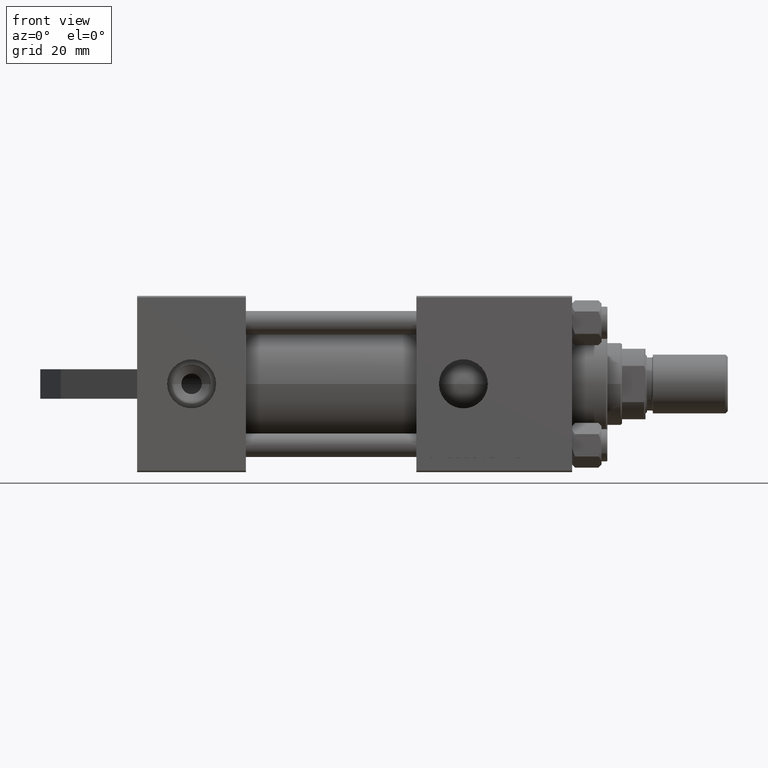
[diagram: clean part render]
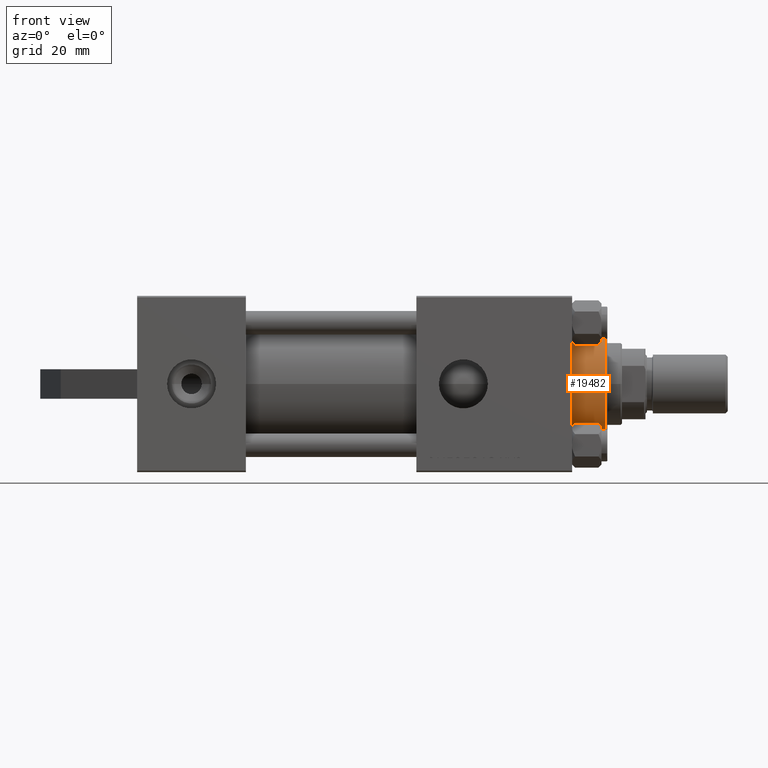
[diagram: same view with one face highlighted and labeled with its STEP entity id]
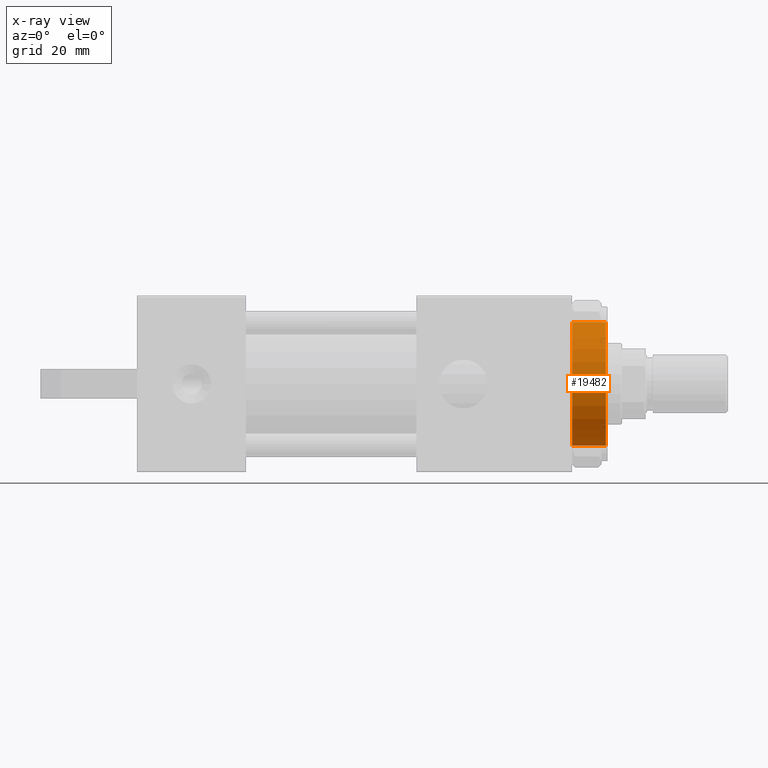
[diagram: x-ray of the same camera — body ghosted, the highlighted face saturated]
A machine part, front view. The second image highlights one B-rep face of the part: STEP entity #19482.
The next image is the same camera in x-ray: the body ghosted, the highlighted face saturated — about 0% of this face is hidden behind the body in this view.
In plain terms, the highlighted cylindrical surface (partial cylindrical patch) has radius 21 mm, axis along (-1, -0, -0).
Its self-contained STEP definition (entity closure, byte-faithful):
#90 = LINE ( 'NONE', #21916, #1208 ) ;
#1208 = VECTOR ( 'NONE', #18171, 1000.000000000000000 ) ;
#3186 = AXIS2_PLACEMENT_3D ( 'NONE', #25038, #35423, #17101 ) ;
#4962 = EDGE_LOOP ( 'NONE', ( #43304, #24445, #37173, #14724 ) ) ;
#6085 = DIRECTION ( 'NONE',  ( -1.000000000000000000, 0.000000000000000000, 0.000000000000000000 ) ) ;
#9350 = VERTEX_POINT ( 'NONE', #19094 ) ;
#11698 = LINE ( 'NONE', #11940, #14927 ) ;
#11940 = CARTESIAN_POINT ( 'NONE',  ( -21.00000000000000000, 0.000000000000000000, 40.70000000000000284 ) ) ;
#12907 = CARTESIAN_POINT ( 'NONE',  ( 0.000000000000000000, 0.000000000000000000, 40.70000000000000284 ) ) ;
#13578 = DIRECTION ( 'NONE',  ( 0.000000000000000000, 0.000000000000000000, 1.000000000000000000 ) ) ;
#14724 = ORIENTED_EDGE ( 'NONE', *, *, #35807, .T. ) ;
#14927 = VECTOR ( 'NONE', #15455, 1000.000000000000000 ) ;
#15421 = CARTESIAN_POINT ( 'NONE',  ( -21.00000000000000000, 0.000000000000000000, 28.69999999999999929 ) ) ;
#15455 = DIRECTION ( 'NONE',  ( -0.000000000000000000, -0.000000000000000000, -1.000000000000000000 ) ) ;
#17101 = DIRECTION ( 'NONE',  ( 1.000000000000000000, 0.000000000000000000, 0.000000000000000000 ) ) ;
#18171 = DIRECTION ( 'NONE',  ( -0.000000000000000000, -0.000000000000000000, -1.000000000000000000 ) ) ;
#19094 = CARTESIAN_POINT ( 'NONE',  ( 21.00000000000000000, 2.571758278209441661E-15, 28.69999999999999929 ) ) ;
#19466 = CYLINDRICAL_SURFACE ( 'NONE', #22384, 21.00000000000000000 ) ;
#19482 = ADVANCED_FACE ( 'NONE', ( #34280 ), #19466, .T. ) ;
#19698 = DIRECTION ( 'NONE',  ( -0.000000000000000000, -0.000000000000000000, -1.000000000000000000 ) ) ;
#21916 = CARTESIAN_POINT ( 'NONE',  ( 21.00000000000000000, 2.571758278209441661E-15, 40.70000000000000284 ) ) ;
#22384 = AXIS2_PLACEMENT_3D ( 'NONE', #12907, #19698, #6085 ) ;
#24445 = ORIENTED_EDGE ( 'NONE', *, *, #28998, .T. ) ;
#25038 = CARTESIAN_POINT ( 'NONE',  ( 0.000000000000000000, 0.000000000000000000, 40.19999999999998863 ) ) ;
#25941 = VERTEX_POINT ( 'NONE', #45324 ) ;
#27426 = CIRCLE ( 'NONE', #37963, 21.00000000000000000 ) ;
#27641 = DIRECTION ( 'NONE',  ( 1.000000000000000000, 0.000000000000000000, 0.000000000000000000 ) ) ;
#28998 = EDGE_CURVE ( 'NONE', #25941, #39996, #36214, .T. ) ;
#34280 = FACE_OUTER_BOUND ( 'NONE', #4962, .T. ) ;
#34736 = CARTESIAN_POINT ( 'NONE',  ( 0.000000000000000000, 0.000000000000000000, 28.69999999999999929 ) ) ;
#35423 = DIRECTION ( 'NONE',  ( 0.000000000000000000, 0.000000000000000000, -1.000000000000000000 ) ) ;
#35807 = EDGE_CURVE ( 'NONE', #45881, #9350, #27426, .T. ) ;
#36214 = CIRCLE ( 'NONE', #3186, 21.00000000000000000 ) ;
#36291 = EDGE_CURVE ( 'NONE', #25941, #9350, #90, .T. ) ;
#37173 = ORIENTED_EDGE ( 'NONE', *, *, #42631, .T. ) ;
#37963 = AXIS2_PLACEMENT_3D ( 'NONE', #34736, #13578, #27641 ) ;
#39996 = VERTEX_POINT ( 'NONE', #40178 ) ;
#40178 = CARTESIAN_POINT ( 'NONE',  ( -21.00000000000000000, 0.000000000000000000, 40.19999999999998863 ) ) ;
#42631 = EDGE_CURVE ( 'NONE', #39996, #45881, #11698, .T. ) ;
#43304 = ORIENTED_EDGE ( 'NONE', *, *, #36291, .F. ) ;
#45324 = CARTESIAN_POINT ( 'NONE',  ( 21.00000000000000000, 2.571758278209441661E-15, 40.19999999999998863 ) ) ;
#45881 = VERTEX_POINT ( 'NONE', #15421 ) ;